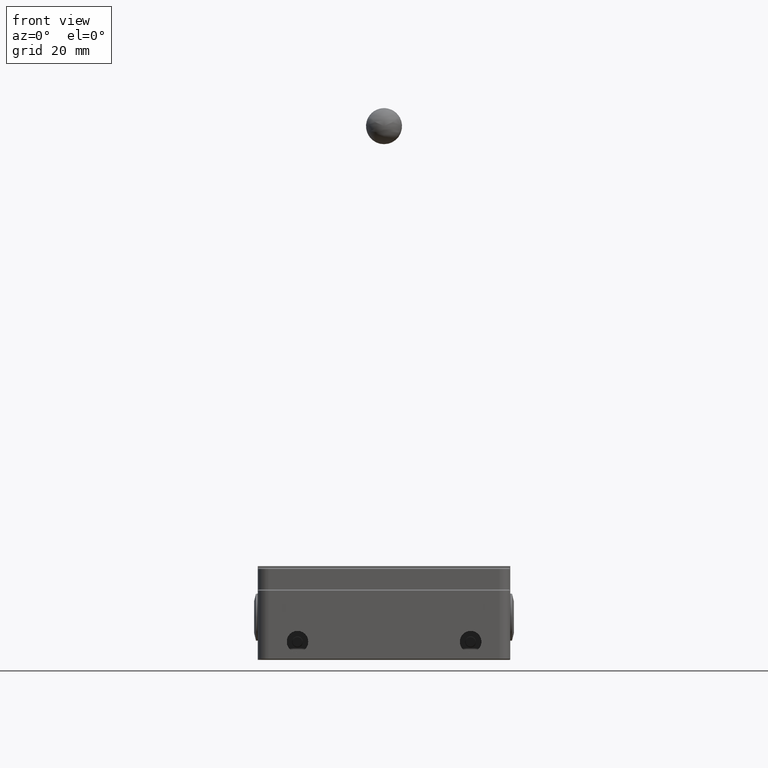
[diagram: clean part render]
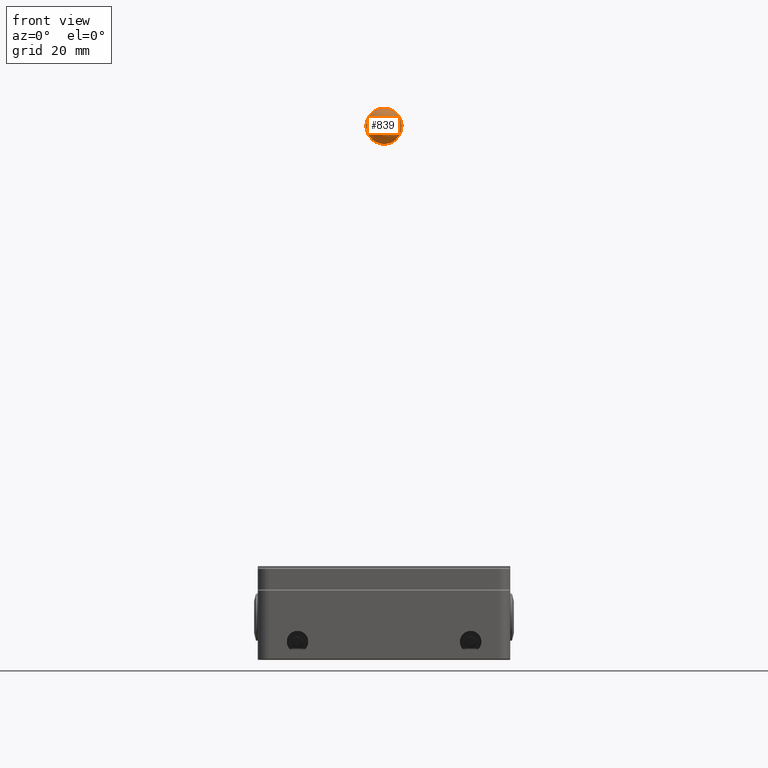
[diagram: same view with one face highlighted and labeled with its STEP entity id]
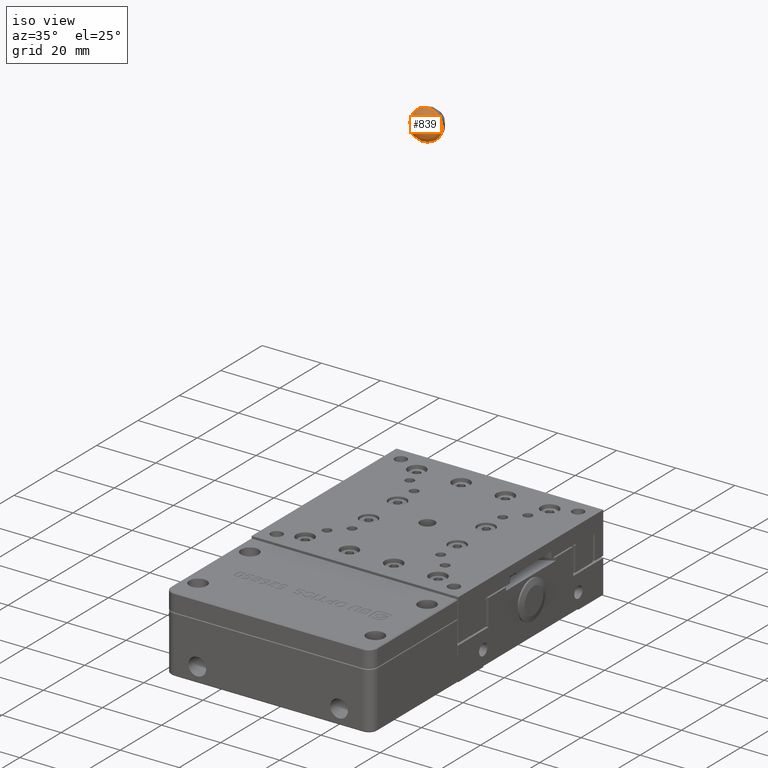
[diagram: same view with one face highlighted and labeled with its STEP entity id]
A machine part, front view. The second image highlights one B-rep face of the part: STEP entity #839.
A second angle (iso view) of the same face is appended — the face is thin or edge-on in the first view.
In plain terms, the highlighted face is a freeform B-spline surface patch.
Its self-contained STEP definition (entity closure, byte-faithful):
#839 = ADVANCED_FACE ( 'NONE', ( #34508 ), #36427, .F. ) ;
#4442 =( BOUNDED_CURVE ( )  B_SPLINE_CURVE ( 3, ( #57097, #11349, #63665, #24531 ),
 .UNSPECIFIED., .F., .F. ) 
 B_SPLINE_CURVE_WITH_KNOTS ( ( 4, 4 ),
 ( 0.0000000000000000000, 1.000000000000000000 ),
 .UNSPECIFIED. ) 
 CURVE ( )  GEOMETRIC_REPRESENTATION_ITEM ( )  RATIONAL_B_SPLINE_CURVE ( ( 1.000000000000000000, 0.3333333333333333700, 0.3333333333333333700, 1.000000000000000000 ) ) 
 REPRESENTATION_ITEM ( '' )  );
#4561 = CARTESIAN_POINT ( 'NONE',  ( -9.999999999999893400, -19.99999999999990100, 143.0000000000000000 ) ) ;
#11114 = CARTESIAN_POINT ( 'NONE',  ( 10.00000000000001200, -2.449293598294694700E-015, 143.0000000000000300 ) ) ;
#11349 = CARTESIAN_POINT ( 'NONE',  ( 10.00000000000001100, 0.0000000000000000000, 143.0000000000000300 ) ) ;
#17708 = CARTESIAN_POINT ( 'NONE',  ( -9.999999999999897000, -19.99999999999990100, 152.9999999999999700 ) ) ;
#18625 = EDGE_CURVE ( 'NONE', #73348, #68745, #35325, .T. ) ;
#24299 = CARTESIAN_POINT ( 'NONE',  ( 10.00000000000001400, -2.449293598294695100E-015, 152.9999999999999700 ) ) ;
#24531 = CARTESIAN_POINT ( 'NONE',  ( 5.950795411991000600E-014, 3.749399456654636400E-032, 152.9999999999999700 ) ) ;
#30888 = CARTESIAN_POINT ( 'NONE',  ( 5.889563072033633000E-014, -1.224646799147350300E-015, 152.9999999999999700 ) ) ;
#34237 = CARTESIAN_POINT ( 'NONE',  ( 5.950795411991000600E-014, 3.749399456654636400E-032, 152.9999999999999700 ) ) ;
#34508 = FACE_OUTER_BOUND ( 'NONE', #82964, .T. ) ;
#35325 =( BOUNDED_CURVE ( )  B_SPLINE_CURVE ( 3, ( #73349, #66771, #65348, #34237 ),
 .UNSPECIFIED., .F., .F. ) 
 B_SPLINE_CURVE_WITH_KNOTS ( ( 4, 4 ),
 ( 0.0000000000000000000, 1.000000000000000000 ),
 .UNSPECIFIED. ) 
 CURVE ( )  GEOMETRIC_REPRESENTATION_ITEM ( )  RATIONAL_B_SPLINE_CURVE ( ( 1.000000000000000000, 0.3333333333333333700, 0.3333333333333333700, 1.000000000000000000 ) ) 
 REPRESENTATION_ITEM ( '' )  );
#36358 = ORIENTED_EDGE ( 'NONE', *, *, #18625, .F. ) ;
#36427 =( BOUNDED_SURFACE ( )  B_SPLINE_SURFACE ( 3, 3, ( 
 ( #43430, #76258, #37169, #82838 ),
 ( #43719, #4561, #50281, #11114 ),
 ( #56855, #17708, #63412, #24299 ),
 ( #69953, #30888, #76541, #37444 ) ),
 .UNSPECIFIED., .F., .F., .F. ) 
 B_SPLINE_SURFACE_WITH_KNOTS ( ( 4, 4 ),
 ( 4, 4 ),
 ( 0.0000000000000000000, 1.000000000000000000 ),
 ( 0.0000000000000000000, 1.000000000000000000 ),
 .UNSPECIFIED. ) 
 GEOMETRIC_REPRESENTATION_ITEM ( )  RATIONAL_B_SPLINE_SURFACE ( (
 ( 1.000000000000000000, 0.3333333333333334300, 0.3333333333333334300, 1.000000000000000000),
 ( 0.3333333333333333700, 0.1111111111111111600, 0.1111111111111111600, 0.3333333333333333700),
 ( 0.3333333333333333700, 0.1111111111111111600, 0.1111111111111111600, 0.3333333333333333700),
 ( 1.000000000000000000, 0.3333333333333334300, 0.3333333333333334300, 1.000000000000000000) ) ) 
 REPRESENTATION_ITEM ( '' )  SURFACE ( )  );
#37169 = CARTESIAN_POINT ( 'NONE',  ( 5.950795411991000600E-014, 0.0000000000000000000, 143.0000000000000300 ) ) ;
#37444 = CARTESIAN_POINT ( 'NONE',  ( 6.012027751948368200E-014, -1.499759782661855000E-031, 152.9999999999999700 ) ) ;
#43430 = CARTESIAN_POINT ( 'NONE',  ( 5.950795411991000600E-014, 0.0000000000000000000, 143.0000000000000300 ) ) ;
#43719 = CARTESIAN_POINT ( 'NONE',  ( -9.999999999999893400, 1.224646799147347300E-015, 143.0000000000000300 ) ) ;
#43848 = EDGE_CURVE ( 'NONE', #73348, #68745, #4442, .T. ) ;
#50281 = CARTESIAN_POINT ( 'NONE',  ( 10.00000000000000700, -19.99999999999990400, 143.0000000000000000 ) ) ;
#50832 = CARTESIAN_POINT ( 'NONE',  ( 5.950795411991000600E-014, 0.0000000000000000000, 143.0000000000000300 ) ) ;
#53703 = CARTESIAN_POINT ( 'NONE',  ( 5.950795411991000600E-014, 3.749399456654636400E-032, 152.9999999999999700 ) ) ;
#56855 = CARTESIAN_POINT ( 'NONE',  ( -9.999999999999893400, 1.224646799147347500E-015, 152.9999999999999700 ) ) ;
#57097 = CARTESIAN_POINT ( 'NONE',  ( 5.950795411991000600E-014, 0.0000000000000000000, 143.0000000000000300 ) ) ;
#63412 = CARTESIAN_POINT ( 'NONE',  ( 10.00000000000001100, -19.99999999999990800, 152.9999999999999700 ) ) ;
#63665 = CARTESIAN_POINT ( 'NONE',  ( 10.00000000000001200, 0.0000000000000000000, 152.9999999999999700 ) ) ;
#65348 = CARTESIAN_POINT ( 'NONE',  ( -9.999999999999895200, 1.224646799147347500E-015, 152.9999999999999700 ) ) ;
#66771 = CARTESIAN_POINT ( 'NONE',  ( -9.999999999999893400, 1.224646799147347300E-015, 143.0000000000000300 ) ) ;
#68745 = VERTEX_POINT ( 'NONE', #53703 ) ;
#69953 = CARTESIAN_POINT ( 'NONE',  ( 5.889563072033633000E-014, 7.498798913309205900E-032, 152.9999999999999700 ) ) ;
#73348 = VERTEX_POINT ( 'NONE', #50832 ) ;
#73349 = CARTESIAN_POINT ( 'NONE',  ( 5.950795411991000600E-014, 0.0000000000000000000, 143.0000000000000300 ) ) ;
#76258 = CARTESIAN_POINT ( 'NONE',  ( 5.950795411991000600E-014, 0.0000000000000000000, 143.0000000000000300 ) ) ;
#76541 = CARTESIAN_POINT ( 'NONE',  ( 6.012027751948368200E-014, -1.224646799147350500E-015, 152.9999999999999700 ) ) ;
#77141 = ORIENTED_EDGE ( 'NONE', *, *, #43848, .T. ) ;
#82838 = CARTESIAN_POINT ( 'NONE',  ( 5.950795411991000600E-014, 0.0000000000000000000, 143.0000000000000300 ) ) ;
#82964 = EDGE_LOOP ( 'NONE', ( #36358, #77141 ) ) ;